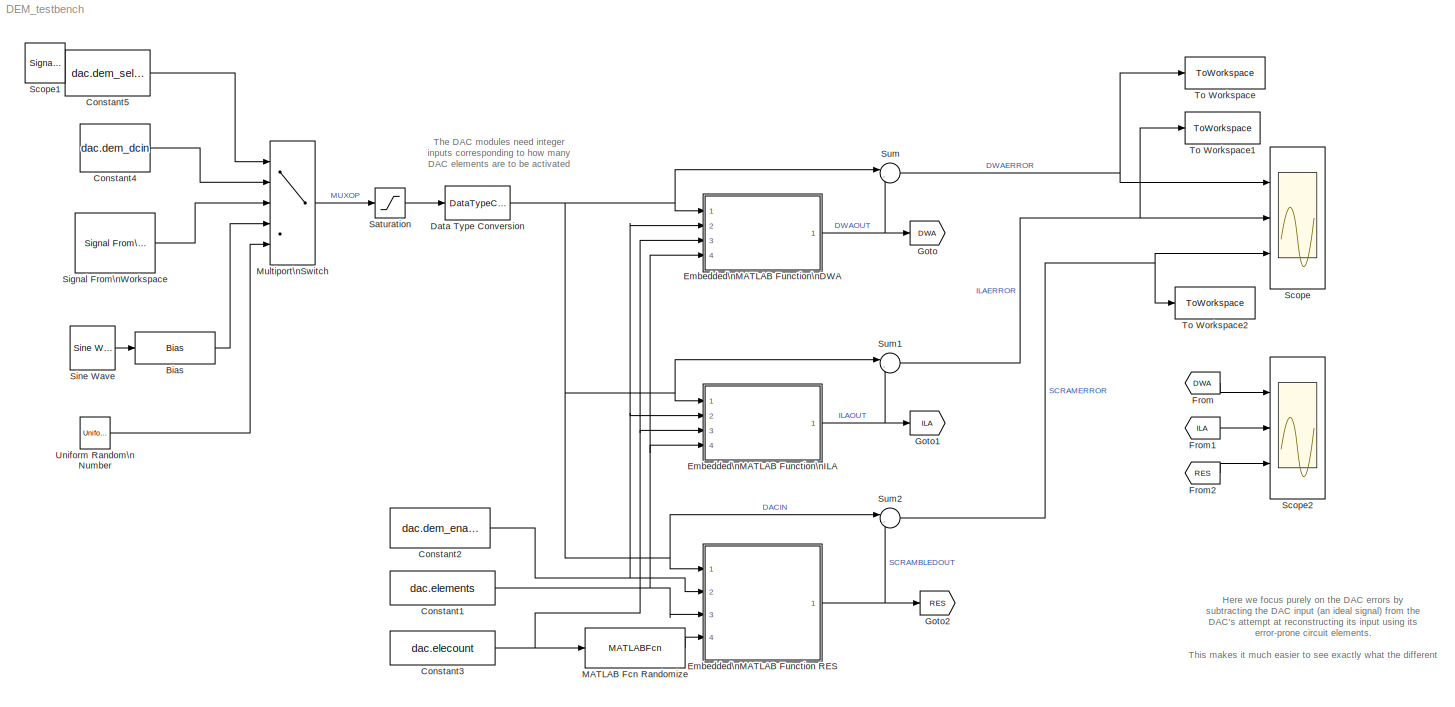
MODEL DEM_testbench
KIND model
BLOCK [Bias] Bias
  Bias = (dac.dem_sinamp)/2
  SID = 104
  SaturateOnIntegerOverflow = off
BLOCK [Constant] Constant1
  SID = 90
  SampleTime = 1/Fs
  Value = dac.elements
BLOCK [Constant] Constant2
  SID = 74
  SampleTime = 1/Fs
  Value = dac.dem_enable
BLOCK [Constant] Constant3
  SID = 75
  SampleTime = 1/Fs
  Value = dac.elecount
BLOCK [Constant] Constant4
  SID = 93
  SampleTime = 1/Fs
  Value = dac.dem_dcin
BLOCK [Constant] Constant5
  SID = 100
  SampleTime = 1/Fs
  Value = dac.dem_select
BLOCK [DataTypeConversion] Data Type Conversion
  OutDataTypeStr = uint8
  RndMeth = Nearest
  SID = 102
  SaturateOnIntegerOverflow = off
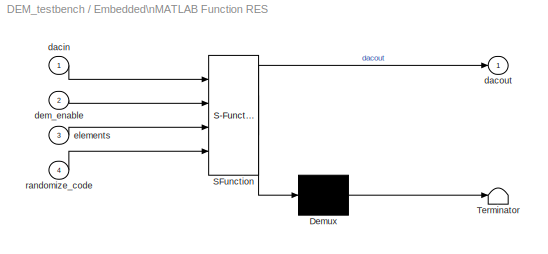
BLOCK [SubSystem] Embedded\nMATLAB Function RES
  ErrorFcn = Stateflow.Translate.translate
  FunctionWithSeparateData = off
  MaskHideContents = off
  MinAlgLoopOccurrences = off
  Opaque = off
  PermitHierarchicalResolution = ExplicitOnly
  Ports = [4, 1]
  PropExecContextOutsideSubsystem = off
  RTWSystemCode = Auto
  RequestExecContextInheritance = off
  SFBlockType = MATLAB Function
  SID = 207
  TreatAsAtomicUnit = on
BLOCK [Demux] Embedded\nMATLAB Function RES/ Demux 
  Outputs = 1
  Ports = [1, 1]
  SID = 207::15
BLOCK [S-Function] Embedded\nMATLAB Function RES/ SFunction 
  EnableBusSupport = on
  FunctionName = sf_sfun
  PortCounts = [4 2]
  Ports = [4, 2]
  SID = 207::14
  Tag = Stateflow S-Function DEM_testbench 4
BLOCK [Terminator] Embedded\nMATLAB Function RES/ Terminator 
  SID = 207::16
BLOCK [Inport] Embedded\nMATLAB Function RES/dacin
  IconDisplay = Port number
  SID = 207::1
BLOCK [Outport] Embedded\nMATLAB Function RES/dacout
  IconDisplay = Port number
  SID = 207::5
BLOCK [Inport] Embedded\nMATLAB Function RES/dem_enable
  IconDisplay = Port number
  Port = 2
  SID = 207::10
BLOCK [Inport] Embedded\nMATLAB Function RES/elements
  IconDisplay = Port number
  Port = 3
  SID = 207::11
BLOCK [Inport] Embedded\nMATLAB Function RES/randomize_code
  IconDisplay = Port number
  Port = 4
  SID = 207::13
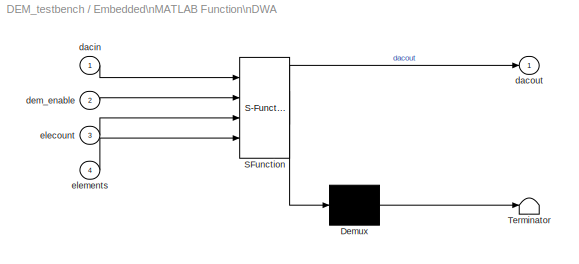
BLOCK [SubSystem] Embedded\nMATLAB Function\nDWA
  ErrorFcn = Stateflow.Translate.translate
  FunctionWithSeparateData = off
  MaskHideContents = off
  MinAlgLoopOccurrences = off
  Opaque = off
  PermitHierarchicalResolution = ExplicitOnly
  Ports = [4, 1]
  PropExecContextOutsideSubsystem = off
  RTWSystemCode = Auto
  RequestExecContextInheritance = off
  SFBlockType = MATLAB Function
  SID = 78
  TreatAsAtomicUnit = on
BLOCK [Demux] Embedded\nMATLAB Function\nDWA/ Demux 
  Outputs = 1
  Ports = [1, 1]
  SID = 78::84
BLOCK [S-Function] Embedded\nMATLAB Function\nDWA/ SFunction 
  EnableBusSupport = on
  FunctionName = sf_sfun
  PortCounts = [4 2]
  Ports = [4, 2]
  SID = 78::83
  Tag = Stateflow S-Function DEM_testbench 2
BLOCK [Terminator] Embedded\nMATLAB Function\nDWA/ Terminator 
  SID = 78::85
BLOCK [Inport] Embedded\nMATLAB Function\nDWA/dacin
  IconDisplay = Port number
  SID = 78::78
BLOCK [Outport] Embedded\nMATLAB Function\nDWA/dacout
  IconDisplay = Port number
  SID = 78::89
BLOCK [Inport] Embedded\nMATLAB Function\nDWA/dem_enable
  IconDisplay = Port number
  Port = 2
  SID = 78::86
BLOCK [Inport] Embedded\nMATLAB Function\nDWA/elecount
  IconDisplay = Port number
  Port = 3
  SID = 78::87
BLOCK [Inport] Embedded\nMATLAB Function\nDWA/elements
  IconDisplay = Port number
  Port = 4
  SID = 78::88
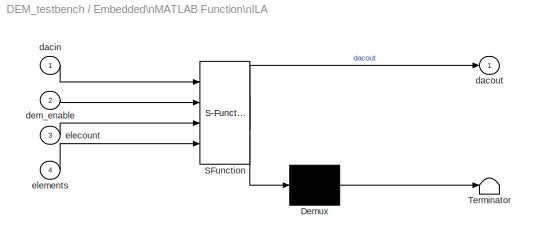
BLOCK [SubSystem] Embedded\nMATLAB Function\nILA
  ErrorFcn = Stateflow.Translate.translate
  FunctionWithSeparateData = off
  MaskHideContents = off
  MinAlgLoopOccurrences = off
  Opaque = off
  PermitHierarchicalResolution = ExplicitOnly
  Ports = [4, 1]
  PropExecContextOutsideSubsystem = off
  RTWSystemCode = Auto
  RequestExecContextInheritance = off
  SFBlockType = MATLAB Function
  SID = 94
  TreatAsAtomicUnit = on
BLOCK [Demux] Embedded\nMATLAB Function\nILA/ Demux 
  Outputs = 1
  Ports = [1, 1]
  SID = 94::100
BLOCK [S-Function] Embedded\nMATLAB Function\nILA/ SFunction 
  EnableBusSupport = on
  FunctionName = sf_sfun
  PortCounts = [4 2]
  Ports = [4, 2]
  SID = 94::99
  Tag = Stateflow S-Function DEM_testbench 1
BLOCK [Terminator] Embedded\nMATLAB Function\nILA/ Terminator 
  SID = 94::101
BLOCK [Inport] Embedded\nMATLAB Function\nILA/dacin
  IconDisplay = Port number
  SID = 94::94
BLOCK [Outport] Embedded\nMATLAB Function\nILA/dacout
  IconDisplay = Port number
  SID = 94::105
BLOCK [Inport] Embedded\nMATLAB Function\nILA/dem_enable
  IconDisplay = Port number
  Port = 2
  SID = 94::102
BLOCK [Inport] Embedded\nMATLAB Function\nILA/elecount
  IconDisplay = Port number
  Port = 3
  SID = 94::106
BLOCK [Inport] Embedded\nMATLAB Function\nILA/elements
  IconDisplay = Port number
  Port = 4
  SID = 94::104
BLOCK [From] From
  GotoTag = DWA
  SID = 218
BLOCK [From] From1
  GotoTag = ILA
  SID = 219
BLOCK [From] From2
  GotoTag = RES
  SID = 220
BLOCK [Goto] Goto
  GotoTag = DWA
  SID = 215
BLOCK [Goto] Goto1
  GotoTag = ILA
  SID = 216
BLOCK [Goto] Goto2
  GotoTag = RES
  SID = 217
BLOCK [MATLABFcn] MATLAB Fcn Randomize
  MATLABFcn = randperm(dac.elecount)
  Ports = [1, 1]
  SID = 114
  SampleTime = 1/Fs
BLOCK [MultiPortSwitch] Multiport\nSwitch
  InputSameDT = off
  Inputs = 4
  Ports = [5, 1]
  SID = 99
  SampleTime = 1/Fs
  SaturateOnIntegerOverflow = off
  zeroidx = off
BLOCK [Saturate] Saturation
  InputPortMap = u0
  LowerLimit = 0
  Ports = [1, 1]
  SID = 103
  SampleTime = 1/Fs
  UpperLimit = dac.elecount
BLOCK [Scope] Scope
  DataFormat = StructureWithTime
  Floating = off
  NumInputPorts = 3
  Ports = [3]
  SID = 80
  SampleTime = 0
  ShowLegends = off
  TimeRange = 0.0018
  YMax = 0.04~5~0.06
  YMin = -0.04~-5~-0.06
  ZoomMode = xonly
BLOCK [SignalViewerScope] Scope1
  IOType = viewer
  MaxDataPoints = 7500
  NumInputPorts = 5
  Ports = []
  RefreshTime = 0.035000
  SID = 117
  ShowDataMarkers = off
  ShowLegends = off
  YMax = 3~3~5~5~5
  YMin = 0~0~-5~-5~-5
  ZoomMode = xonly
BLOCK [Scope] Scope2
  DataFormat = StructureWithTime
  Floating = off
  NumInputPorts = 3
  Ports = [3]
  SID = 214
  SampleTime = 0
  SaveName = ScopeData1
  ShowLegends = off
  TimeRange = 0.0006018447348193692
  YMax = 2.06~2.06~2.06
  YMin = 1.96~1.94~1.94
  ZoomMode = xonly
BLOCK [Reference] Signal From\nWorkspace  REF=dspsrcs4/Signal From\nWorkspace
  OutputAfterFinalValue = Cyclic repetition
  Ports = [0, 1]
  SID = 96
  SourceBlock = dspsrcs4/Signal From\nWorkspace
  SourceType = Signal From Workspace
  Ts = 1/Fs
  X = [1 1 2]
  ignoreOrWarnInputAndFrameLengths = off
  nsamps = 1
BLOCK [Reference] Sine Wave  REF=dspsrcs4/Sine Wave
  Amplitude = (dac.dem_sinamp)/2
  CompMethod = Trigonometric fcn
  Frequency = dac.dem_sinfreq
  LastOutDataTypeStr = double
  OutComplex = Real
  OutDataTypeStr = double
  Phase = 0
  Ports = [0, 1]
  ResetState = Restart at time zero
  SID = 98
  SampleMode = Discrete
  SampleTime = 1/Fs
  SamplesPerFrame = 1
  SourceBlock = dspsrcs4/Sine Wave
  SourceType = Sine Wave
  TableSize = Speed
  additionalParams = off
  allowOverrides = on
  dataType = double
  fracBitsMode = Best precision
  numFracBits = 15
  udDataType = sfix(16)
  wordLen = 16
BLOCK [Sum] Sum
  IconShape = round
  InputSameDT = off
  Inputs = |-+
  OutDataTypeStr = Inherit: Inherit via internal rule
  Ports = [2, 1]
  SID = 108
  SampleTime = 1/Fs
  SaturateOnIntegerOverflow = off
BLOCK [Sum] Sum1
  IconShape = round
  InputSameDT = off
  Inputs = |-+
  OutDataTypeStr = Inherit: Inherit via internal rule
  Ports = [2, 1]
  SID = 109
  SampleTime = 1/Fs
  SaturateOnIntegerOverflow = off
BLOCK [Sum] Sum2
  IconShape = round
  InputSameDT = off
  Inputs = |-+
  OutDataTypeStr = Inherit: Inherit via internal rule
  Ports = [2, 1]
  SID = 110
  SampleTime = 1/Fs
  SaturateOnIntegerOverflow = off
BLOCK [ToWorkspace] To Workspace
  MaxDataPoints = inf
  Ports = [1]
  SID = 212
  SampleTime = -1
  VariableName = mod_outDWA
BLOCK [ToWorkspace] To Workspace1
  MaxDataPoints = inf
  Ports = [1]
  SID = 221
  SampleTime = -1
  VariableName = mod_outILA
BLOCK [ToWorkspace] To Workspace2
  MaxDataPoints = inf
  Ports = [1]
  SID = 222
  SampleTime = -1
  VariableName = mod_outRES
BLOCK [UniformRandomNumber] Uniform Random\nNumber
  Maximum = dac.elecount
  Minimum = 0
  SID = 105
  SampleTime = 1/Fs
ANNOTATION (root): Here we focus purely on the DAC errors by\nsubtracting the DAC input (an ideal signal) from the\nDAC's attempt at reconstructing its input using its\nerror-prone circuit elements.\n\nThis makes it much easier to see exactly what the different\nDEM algorithms are doing to the DAC output error\nspectrums resulting from the DAC unit element errors.
ANNOTATION (root): The DAC modules need integer\ninputs corresponding to how many\nDAC elements are to be activated
LINE Bias:1 -> Multiport\nSwitch:4
NET Constant1:1 -> Embedded\nMATLAB Function RES:3, Embedded\nMATLAB Function\nDWA:4, Embedded\nMATLAB Function\nILA:4
NET Constant2:1 -> Embedded\nMATLAB Function RES:2, Embedded\nMATLAB Function\nDWA:2, Embedded\nMATLAB Function\nILA:2
NET Constant3:1 -> Embedded\nMATLAB Function\nDWA:3, Embedded\nMATLAB Function\nILA:3, MATLAB Fcn Randomize:1
LINE Constant4:1 -> Multiport\nSwitch:2
LINE Constant5:1 -> Multiport\nSwitch:1
NET Data Type Conversion:1 -> Embedded\nMATLAB Function RES:1, Embedded\nMATLAB Function\nDWA:1, Embedded\nMATLAB Function\nILA:1, Sum1:1, Sum2:1, Sum:1
LINE Embedded\nMATLAB Function RES/ Demux :1 -> Embedded\nMATLAB Function RES/ Terminator :1
LINE Embedded\nMATLAB Function RES/ SFunction :1 -> Embedded\nMATLAB Function RES/ Demux :1
LINE Embedded\nMATLAB Function RES/ SFunction :2 -> Embedded\nMATLAB Function RES/dacout:1
LINE Embedded\nMATLAB Function RES/dacin:1 -> Embedded\nMATLAB Function RES/ SFunction :1
LINE Embedded\nMATLAB Function RES/dem_enable:1 -> Embedded\nMATLAB Function RES/ SFunction :2
LINE Embedded\nMATLAB Function RES/elements:1 -> Embedded\nMATLAB Function RES/ SFunction :3
LINE Embedded\nMATLAB Function RES/randomize_code:1 -> Embedded\nMATLAB Function RES/ SFunction :4
NET Embedded\nMATLAB Function RES:1 -> Goto2:1, Sum2:2
LINE Embedded\nMATLAB Function\nDWA/ Demux :1 -> Embedded\nMATLAB Function\nDWA/ Terminator :1
LINE Embedded\nMATLAB Function\nDWA/ SFunction :1 -> Embedded\nMATLAB Function\nDWA/ Demux :1
LINE Embedded\nMATLAB Function\nDWA/ SFunction :2 -> Embedded\nMATLAB Function\nDWA/dacout:1
LINE Embedded\nMATLAB Function\nDWA/dacin:1 -> Embedded\nMATLAB Function\nDWA/ SFunction :1
LINE Embedded\nMATLAB Function\nDWA/dem_enable:1 -> Embedded\nMATLAB Function\nDWA/ SFunction :2
LINE Embedded\nMATLAB Function\nDWA/elecount:1 -> Embedded\nMATLAB Function\nDWA/ SFunction :3
LINE Embedded\nMATLAB Function\nDWA/elements:1 -> Embedded\nMATLAB Function\nDWA/ SFunction :4
NET Embedded\nMATLAB Function\nDWA:1 -> Goto:1, Sum:2
LINE Embedded\nMATLAB Function\nILA/ Demux :1 -> Embedded\nMATLAB Function\nILA/ Terminator :1
LINE Embedded\nMATLAB Function\nILA/ SFunction :1 -> Embedded\nMATLAB Function\nILA/ Demux :1
LINE Embedded\nMATLAB Function\nILA/ SFunction :2 -> Embedded\nMATLAB Function\nILA/dacout:1
LINE Embedded\nMATLAB Function\nILA/dacin:1 -> Embedded\nMATLAB Function\nILA/ SFunction :1
LINE Embedded\nMATLAB Function\nILA/dem_enable:1 -> Embedded\nMATLAB Function\nILA/ SFunction :2
LINE Embedded\nMATLAB Function\nILA/elecount:1 -> Embedded\nMATLAB Function\nILA/ SFunction :3
LINE Embedded\nMATLAB Function\nILA/elements:1 -> Embedded\nMATLAB Function\nILA/ SFunction :4
NET Embedded\nMATLAB Function\nILA:1 -> Goto1:1, Sum1:2
LINE From1:1 -> Scope2:2
LINE From2:1 -> Scope2:3
LINE From:1 -> Scope2:1
LINE MATLAB Fcn Randomize:1 -> Embedded\nMATLAB Function RES:4
LINE Multiport\nSwitch:1 -> Saturation:1
LINE Saturation:1 -> Data Type Conversion:1
LINE Signal From\nWorkspace:1 -> Multiport\nSwitch:3
LINE Sine Wave:1 -> Bias:1
NET Sum1:1 -> Scope:2, To Workspace1:1
NET Sum2:1 -> Scope:3, To Workspace2:1
NET Sum:1 -> Scope:1, To Workspace:1
LINE Uniform Random\nNumber:1 -> Multiport\nSwitch:5
note: NET lines group one-source signal fan-out (src -> all destinations, sorted); 1:1 wires keep LINE
CHART Embedded\nMATLAB Function\nILA states=1 transitions=1
  STATE_LABEL 'eML_blk_kernel()'
CHART Embedded\nMATLAB Function\nDWA states=1 transitions=1
  STATE_LABEL 'eML_blk_kernel()'
CHART Embedded\nMATLAB Function RES states=1 transitions=1
  STATE_LABEL 'eML_blk_kernel()'
